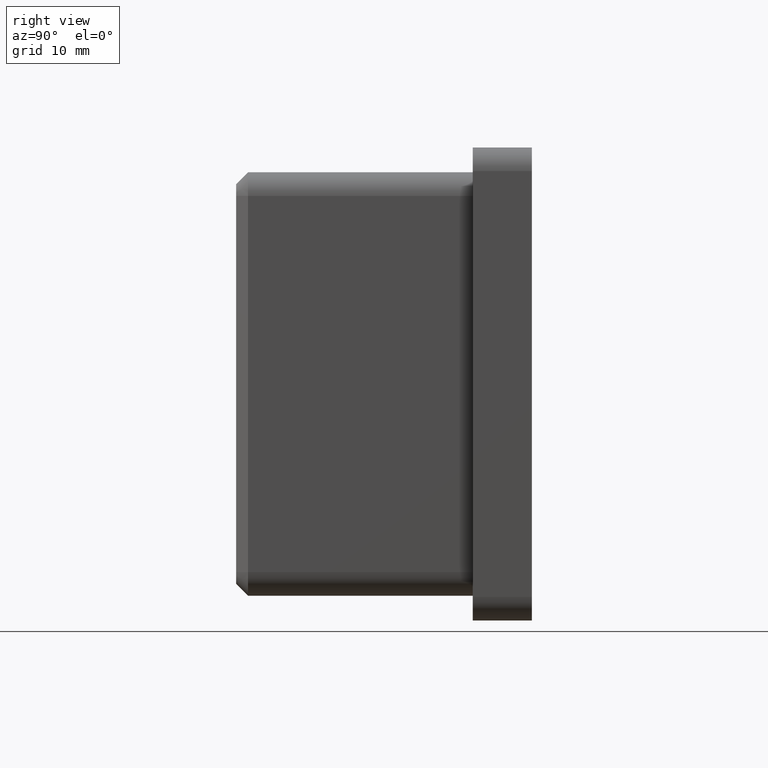
[diagram: clean part render]
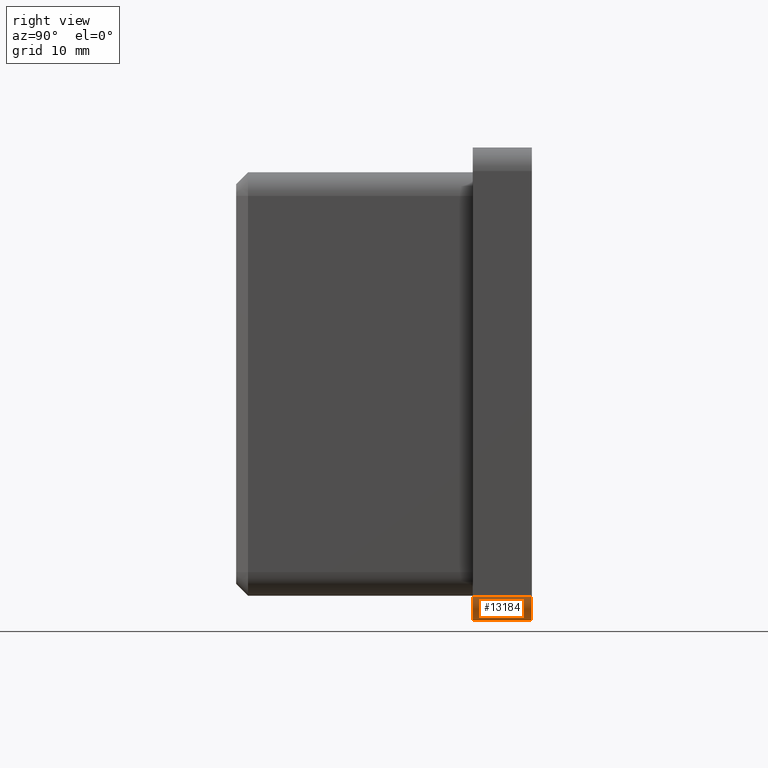
[diagram: same view with one face highlighted and labeled with its STEP entity id]
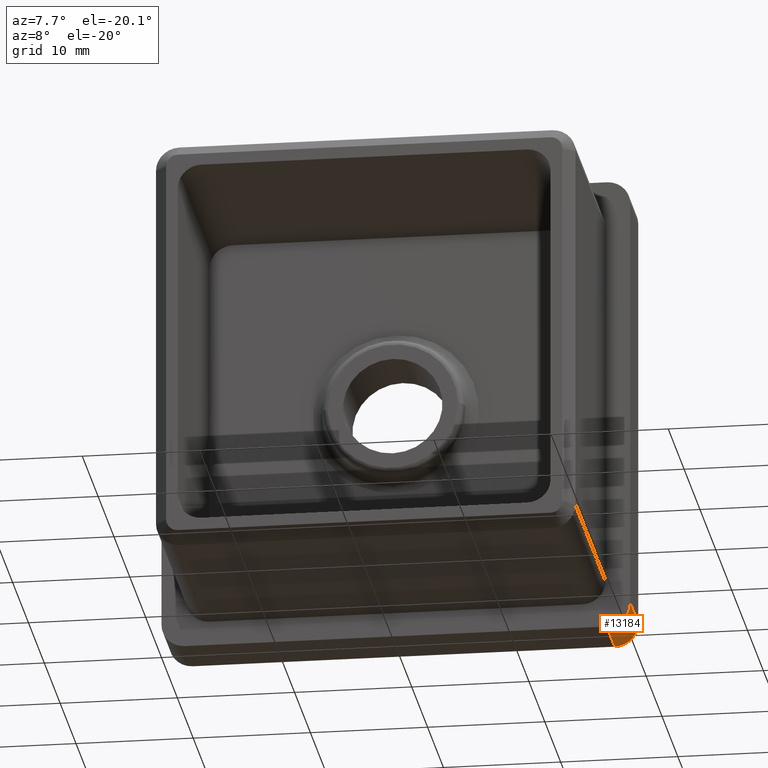
[diagram: same view with one face highlighted and labeled with its STEP entity id]
A machine part, right view. The second image highlights one B-rep face of the part: STEP entity #13184.
A second angle (auxiliary view) of the same face is appended — the face is thin or edge-on in the first view.
In plain terms, the highlighted cylindrical surface (edge-blend (fillet) strip) has radius 2 mm, axis along (0, -1, 0).
Its self-contained STEP definition (entity closure, byte-faithful):
#178 = CYLINDRICAL_SURFACE ( 'NONE', #10158, 2.000000000000001800 ) ;
#179 = DIRECTION ( 'NONE',  ( -0.0000000000000000000, -1.000000000000000000, -0.0000000000000000000 ) ) ;
#194 = VERTEX_POINT ( 'NONE', #5837 ) ;
#410 = LINE ( 'NONE', #11841, #14865 ) ;
#1061 = CARTESIAN_POINT ( 'NONE',  ( 19.99999999999999600, 5.000000000000000000, -17.99999999999999600 ) ) ;
#1255 = CARTESIAN_POINT ( 'NONE',  ( 17.99999999999999600, 5.000000000000000000, -19.99999999999999600 ) ) ;
#1411 = DIRECTION ( 'NONE',  ( 0.0000000000000000000, 0.0000000000000000000, 1.000000000000000000 ) ) ;
#1851 = ORIENTED_EDGE ( 'NONE', *, *, #11200, .F. ) ;
#4002 = CIRCLE ( 'NONE', #15142, 2.000000000000001800 ) ;
#4047 = CARTESIAN_POINT ( 'NONE',  ( 17.99999999999999600, 0.0000000000000000000, -17.99999999999999600 ) ) ;
#4320 = DIRECTION ( 'NONE',  ( 0.0000000000000000000, -1.000000000000000000, 0.0000000000000000000 ) ) ;
#5538 = CARTESIAN_POINT ( 'NONE',  ( 17.99999999999999600, 5.000000000000000000, -17.99999999999999600 ) ) ;
#5771 = ORIENTED_EDGE ( 'NONE', *, *, #14367, .F. ) ;
#5837 = CARTESIAN_POINT ( 'NONE',  ( 19.99999999999999600, 0.0000000000000000000, -17.99999999999999600 ) ) ;
#6265 = CARTESIAN_POINT ( 'NONE',  ( 19.99999999999999600, 5.000000000000000000, -17.99999999999999600 ) ) ;
#6782 = CARTESIAN_POINT ( 'NONE',  ( 17.99999999999999600, 0.0000000000000000000, -19.99999999999999600 ) ) ;
#7207 = CARTESIAN_POINT ( 'NONE',  ( 17.99999999999999600, 5.000000000000000000, -17.99999999999999600 ) ) ;
#7315 = EDGE_CURVE ( 'NONE', #194, #15722, #10553, .T. ) ;
#7480 = DIRECTION ( 'NONE',  ( 0.0000000000000000000, -1.000000000000000000, 0.0000000000000000000 ) ) ;
#10117 = DIRECTION ( 'NONE',  ( 0.0000000000000000000, 0.0000000000000000000, -1.000000000000000000 ) ) ;
#10158 = AXIS2_PLACEMENT_3D ( 'NONE', #7207, #7480, #10117 ) ;
#10553 = LINE ( 'NONE', #1061, #14127 ) ;
#10589 = DIRECTION ( 'NONE',  ( 0.0000000000000000000, 1.000000000000000000, 0.0000000000000000000 ) ) ;
#11200 = EDGE_CURVE ( 'NONE', #12114, #194, #4002, .T. ) ;
#11841 = CARTESIAN_POINT ( 'NONE',  ( 17.99999999999999600, 5.000000000000000000, -19.99999999999999600 ) ) ;
#12114 = VERTEX_POINT ( 'NONE', #6782 ) ;
#12627 = DIRECTION ( 'NONE',  ( -0.0000000000000000000, 1.000000000000000000, -0.0000000000000000000 ) ) ;
#12711 = ORIENTED_EDGE ( 'NONE', *, *, #7315, .F. ) ;
#12718 = AXIS2_PLACEMENT_3D ( 'NONE', #5538, #10589, #15595 ) ;
#13184 = ADVANCED_FACE ( 'NONE', ( #16063 ), #178, .T. ) ;
#14074 = EDGE_CURVE ( 'NONE', #15722, #15427, #14145, .T. ) ;
#14127 = VECTOR ( 'NONE', #12627, 1000.000000000000000 ) ;
#14145 = CIRCLE ( 'NONE', #12718, 2.000000000000001800 ) ;
#14367 = EDGE_CURVE ( 'NONE', #15427, #12114, #410, .T. ) ;
#14557 = ORIENTED_EDGE ( 'NONE', *, *, #14074, .F. ) ;
#14865 = VECTOR ( 'NONE', #4320, 1000.000000000000000 ) ;
#15142 = AXIS2_PLACEMENT_3D ( 'NONE', #4047, #179, #1411 ) ;
#15427 = VERTEX_POINT ( 'NONE', #1255 ) ;
#15595 = DIRECTION ( 'NONE',  ( 0.0000000000000000000, 0.0000000000000000000, 1.000000000000000000 ) ) ;
#15722 = VERTEX_POINT ( 'NONE', #6265 ) ;
#16063 = FACE_OUTER_BOUND ( 'NONE', #16305, .T. ) ;
#16305 = EDGE_LOOP ( 'NONE', ( #14557, #12711, #1851, #5771 ) ) ;